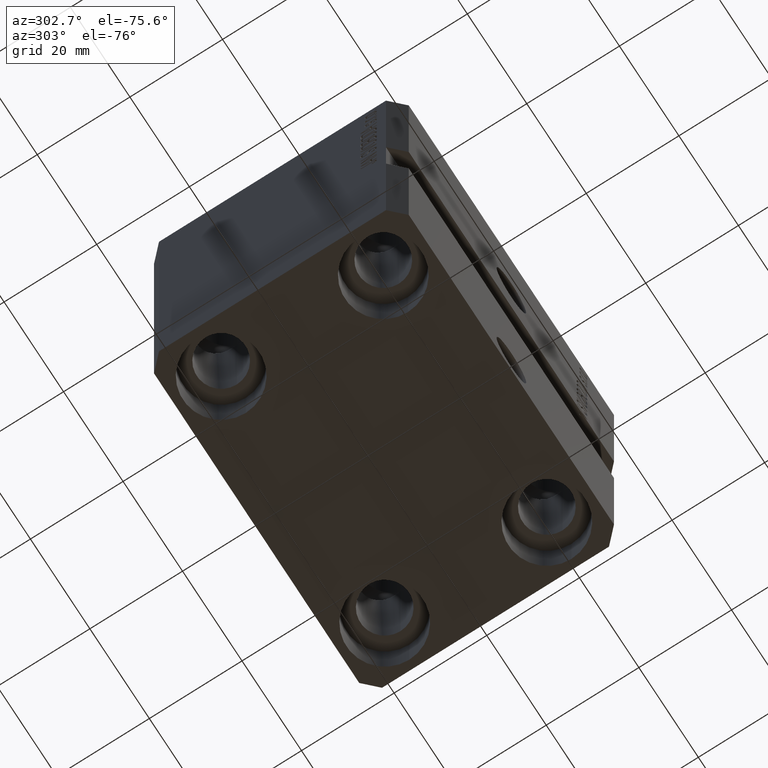
[diagram: clean part render]
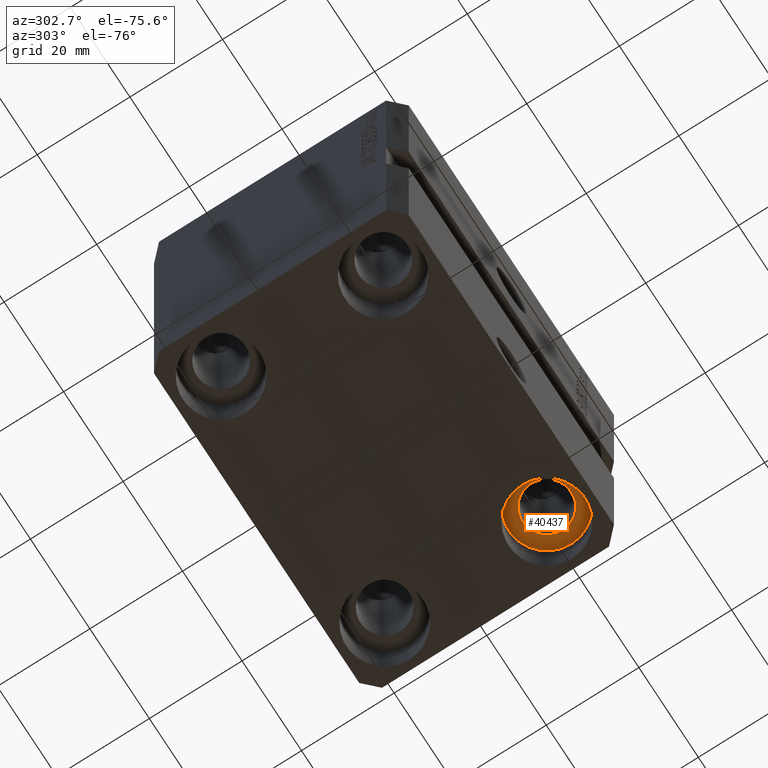
[diagram: same view with one face highlighted and labeled with its STEP entity id]
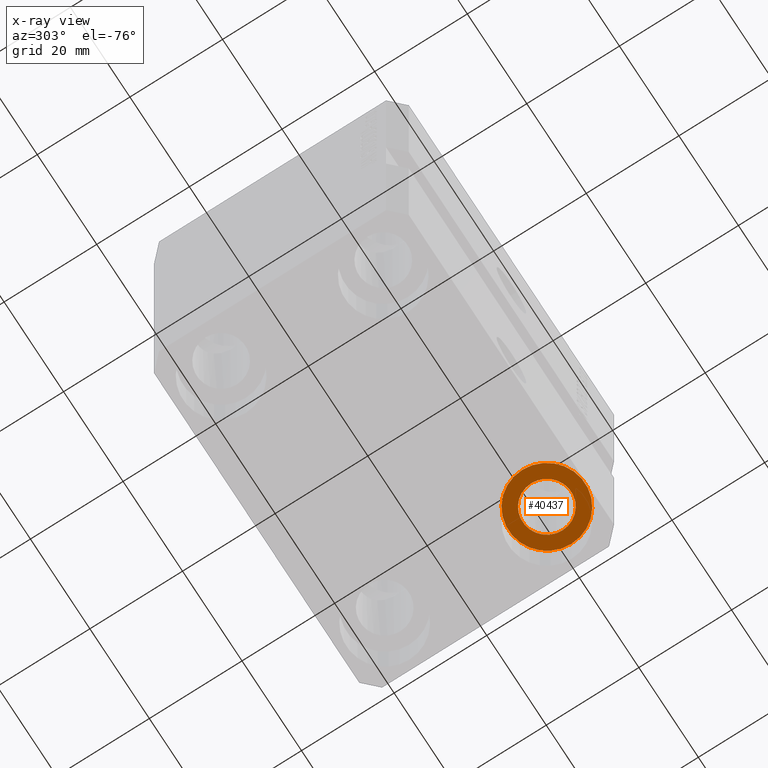
[diagram: x-ray of the same camera — body ghosted, the highlighted face saturated]
A machine part, auxiliary view. The second image highlights one B-rep face of the part: STEP entity #40437.
The next image is the same camera in x-ray: the body ghosted, the highlighted face saturated — about 0% of this face is hidden behind the body in this view.
In plain terms, the highlighted planar face has unit normal (0, 0, -1).
Its self-contained STEP definition (entity closure, byte-faithful):
#2147 = AXIS2_PLACEMENT_3D ( 'NONE', #3838, #33936, #4063 ) ;
#2377 = ORIENTED_EDGE ( 'NONE', *, *, #29800, .F. ) ;
#2436 = EDGE_CURVE ( 'NONE', #8637, #34523, #4919, .T. ) ;
#3838 = CARTESIAN_POINT ( 'NONE',  ( 27.50000000000000355, -17.50000000000000000, -69.00000000000000000 ) ) ;
#4063 = DIRECTION ( 'NONE',  ( 1.000000000000000000, 0.000000000000000000, 0.000000000000000000 ) ) ;
#4376 = DIRECTION ( 'NONE',  ( 1.000000000000000000, 0.000000000000000000, 0.000000000000000000 ) ) ;
#4413 = ORIENTED_EDGE ( 'NONE', *, *, #2436, .F. ) ;
#4597 = EDGE_CURVE ( 'NONE', #34523, #8637, #8530, .T. ) ;
#4919 = CIRCLE ( 'NONE', #12040, 8.250000000000000000 ) ;
#5571 = CIRCLE ( 'NONE', #30473, 5.249999999999997335 ) ;
#7535 = EDGE_LOOP ( 'NONE', ( #16198, #2377 ) ) ;
#8530 = CIRCLE ( 'NONE', #2147, 8.250000000000000000 ) ;
#8637 = VERTEX_POINT ( 'NONE', #14767 ) ;
#9652 = CARTESIAN_POINT ( 'NONE',  ( 22.25000000000000711, -17.50000000000000000, -69.00000000000000000 ) ) ;
#10743 = CARTESIAN_POINT ( 'NONE',  ( 27.50000000000000355, -17.50000000000000000, -69.00000000000000000 ) ) ;
#10964 = DIRECTION ( 'NONE',  ( 0.000000000000000000, 0.000000000000000000, -1.000000000000000000 ) ) ;
#11970 = FACE_BOUND ( 'NONE', #7535, .T. ) ;
#12040 = AXIS2_PLACEMENT_3D ( 'NONE', #35352, #34913, #4376 ) ;
#12674 = AXIS2_PLACEMENT_3D ( 'NONE', #25549, #39156, #23522 ) ;
#14767 = CARTESIAN_POINT ( 'NONE',  ( 35.75000000000000711, -17.50000000000000000, -69.00000000000000000 ) ) ;
#16198 = ORIENTED_EDGE ( 'NONE', *, *, #39011, .F. ) ;
#17576 = CARTESIAN_POINT ( 'NONE',  ( 27.50000000000000355, -17.50000000000000000, -69.00000000000000000 ) ) ;
#20840 = EDGE_LOOP ( 'NONE', ( #25122, #4413 ) ) ;
#21829 = CARTESIAN_POINT ( 'NONE',  ( 19.25000000000000000, -17.50000000000000000, -69.00000000000000000 ) ) ;
#23522 = DIRECTION ( 'NONE',  ( 1.000000000000000000, 0.000000000000000000, 0.000000000000000000 ) ) ;
#23814 = DIRECTION ( 'NONE',  ( 0.000000000000000000, 0.000000000000000000, -1.000000000000000000 ) ) ;
#25122 = ORIENTED_EDGE ( 'NONE', *, *, #4597, .F. ) ;
#25549 = CARTESIAN_POINT ( 'NONE',  ( 27.50000000000000355, -17.50000000000000000, -69.00000000000000000 ) ) ;
#29062 = VERTEX_POINT ( 'NONE', #38511 ) ;
#29800 = EDGE_CURVE ( 'NONE', #39857, #29062, #5571, .T. ) ;
#30473 = AXIS2_PLACEMENT_3D ( 'NONE', #17576, #23814, #40773 ) ;
#33936 = DIRECTION ( 'NONE',  ( -0.000000000000000000, -0.000000000000000000, 1.000000000000000000 ) ) ;
#34523 = VERTEX_POINT ( 'NONE', #21829 ) ;
#34913 = DIRECTION ( 'NONE',  ( -0.000000000000000000, -0.000000000000000000, 1.000000000000000000 ) ) ;
#35352 = CARTESIAN_POINT ( 'NONE',  ( 27.50000000000000355, -17.50000000000000000, -69.00000000000000000 ) ) ;
#35376 = FACE_OUTER_BOUND ( 'NONE', #20840, .T. ) ;
#36790 = CIRCLE ( 'NONE', #40357, 5.249999999999997335 ) ;
#38511 = CARTESIAN_POINT ( 'NONE',  ( 32.75000000000000000, -17.50000000000000000, -69.00000000000000000 ) ) ;
#39011 = EDGE_CURVE ( 'NONE', #29062, #39857, #36790, .T. ) ;
#39156 = DIRECTION ( 'NONE',  ( 0.000000000000000000, 0.000000000000000000, -1.000000000000000000 ) ) ;
#39857 = VERTEX_POINT ( 'NONE', #9652 ) ;
#40357 = AXIS2_PLACEMENT_3D ( 'NONE', #10743, #10964, #41520 ) ;
#40437 = ADVANCED_FACE ( 'NONE', ( #11970, #35376 ), #42522, .T. ) ;
#40773 = DIRECTION ( 'NONE',  ( -1.000000000000000000, 0.000000000000000000, 0.000000000000000000 ) ) ;
#41520 = DIRECTION ( 'NONE',  ( -1.000000000000000000, 0.000000000000000000, 0.000000000000000000 ) ) ;
#42522 = PLANE ( 'NONE',  #12674 ) ;